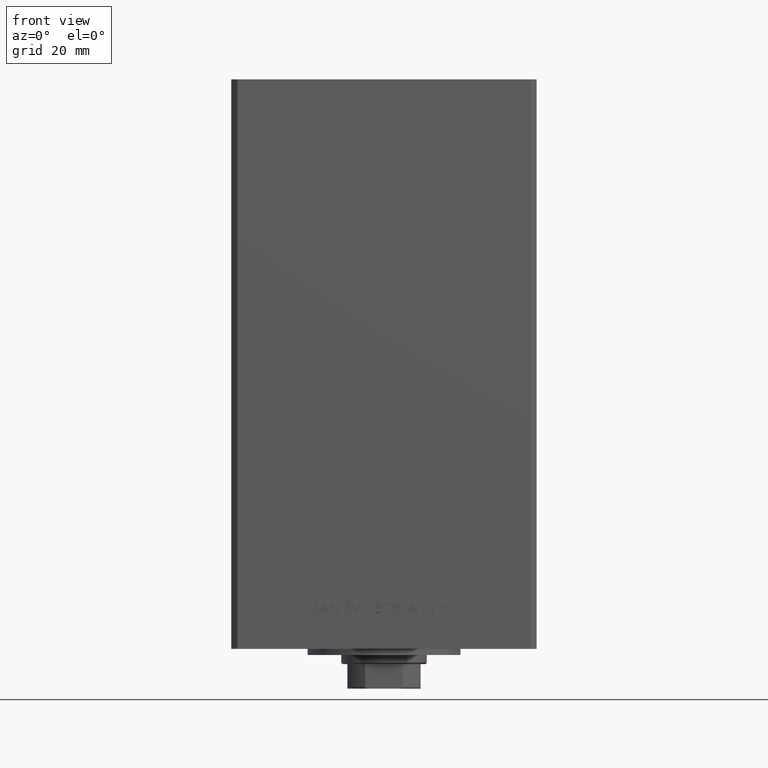
[diagram: clean part render]
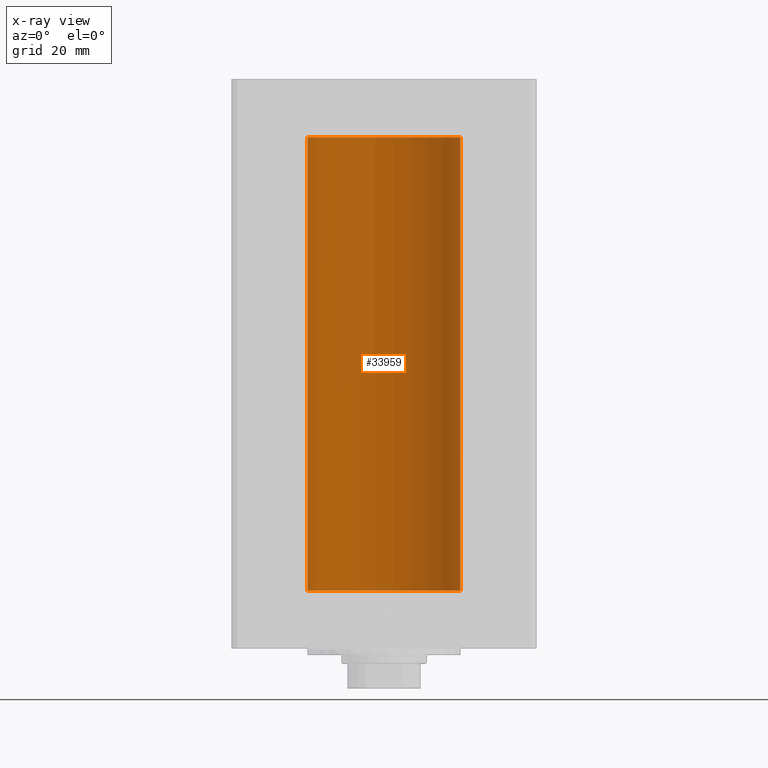
[diagram: x-ray — body ghosted, one internal face saturated and labeled with its STEP entity id]
A machine part, front view, then the same camera in x-ray: the body is ghosted and one INTERNAL B-rep face — a face not visible from any outside direction — is saturated and labeled: STEP entity #33959.
In plain terms, the highlighted cylindrical surface (partial cylindrical patch) has radius 25 mm, axis along (-0, -0, -1).
Its self-contained STEP definition (entity closure, byte-faithful):
#1067 = DIRECTION ( 'NONE',  ( -0.000000000000000000, 0.000000000000000000, 1.000000000000000000 ) ) ;
#1548 = FACE_OUTER_BOUND ( 'NONE', #13859, .T. ) ;
#1785 = DIRECTION ( 'NONE',  ( -1.000000000000000000, 0.000000000000000000, 0.000000000000000000 ) ) ;
#2553 = CARTESIAN_POINT ( 'NONE',  ( 25.00000000000000000, 3.061616997868383043E-15, 148.5000000000000000 ) ) ;
#2804 = CARTESIAN_POINT ( 'NONE',  ( -25.00000000000000000, 0.000000000000000000, 0.000000000000000000 ) ) ;
#4093 = CIRCLE ( 'NONE', #26566, 25.00000000000000000 ) ;
#6280 = ORIENTED_EDGE ( 'NONE', *, *, #20556, .T. ) ;
#8542 = ORIENTED_EDGE ( 'NONE', *, *, #8989, .T. ) ;
#8543 = CIRCLE ( 'NONE', #37398, 25.00000000000000000 ) ;
#8989 = EDGE_CURVE ( 'NONE', #37281, #38346, #16704, .T. ) ;
#9124 = VECTOR ( 'NONE', #21220, 1000.000000000000000 ) ;
#13859 = EDGE_LOOP ( 'NONE', ( #39076, #6280, #8542, #46637 ) ) ;
#16610 = DIRECTION ( 'NONE',  ( 1.000000000000000000, 0.000000000000000000, 0.000000000000000000 ) ) ;
#16704 = LINE ( 'NONE', #24988, #9124 ) ;
#16835 = CYLINDRICAL_SURFACE ( 'NONE', #22649, 25.00000000000000000 ) ;
#19302 = LINE ( 'NONE', #45878, #49574 ) ;
#20263 = CARTESIAN_POINT ( 'NONE',  ( 25.00000000000000000, 3.061616997868383043E-15, 0.000000000000000000 ) ) ;
#20556 = EDGE_CURVE ( 'NONE', #38201, #37281, #8543, .T. ) ;
#21220 = DIRECTION ( 'NONE',  ( -0.000000000000000000, -0.000000000000000000, -1.000000000000000000 ) ) ;
#22649 = AXIS2_PLACEMENT_3D ( 'NONE', #28638, #47433, #1785 ) ;
#24713 = CARTESIAN_POINT ( 'NONE',  ( 0.000000000000000000, 0.000000000000000000, 148.5000000000000000 ) ) ;
#24988 = CARTESIAN_POINT ( 'NONE',  ( -25.00000000000000000, 0.000000000000000000, 148.5000000000000000 ) ) ;
#26101 = EDGE_CURVE ( 'NONE', #38201, #42592, #19302, .T. ) ;
#26566 = AXIS2_PLACEMENT_3D ( 'NONE', #39196, #1067, #16610 ) ;
#26846 = DIRECTION ( 'NONE',  ( -0.000000000000000000, -0.000000000000000000, -1.000000000000000000 ) ) ;
#28638 = CARTESIAN_POINT ( 'NONE',  ( 0.000000000000000000, 0.000000000000000000, 148.5000000000000000 ) ) ;
#31132 = EDGE_CURVE ( 'NONE', #42592, #38346, #4093, .T. ) ;
#33959 = ADVANCED_FACE ( 'NONE', ( #1548 ), #16835, .F. ) ;
#37281 = VERTEX_POINT ( 'NONE', #43650 ) ;
#37398 = AXIS2_PLACEMENT_3D ( 'NONE', #24713, #47759, #47017 ) ;
#38201 = VERTEX_POINT ( 'NONE', #2553 ) ;
#38346 = VERTEX_POINT ( 'NONE', #2804 ) ;
#39076 = ORIENTED_EDGE ( 'NONE', *, *, #26101, .F. ) ;
#39196 = CARTESIAN_POINT ( 'NONE',  ( 0.000000000000000000, 0.000000000000000000, 0.000000000000000000 ) ) ;
#42592 = VERTEX_POINT ( 'NONE', #20263 ) ;
#43650 = CARTESIAN_POINT ( 'NONE',  ( -25.00000000000000000, 0.000000000000000000, 148.5000000000000000 ) ) ;
#45878 = CARTESIAN_POINT ( 'NONE',  ( 25.00000000000000000, 3.061616997868383043E-15, 148.5000000000000000 ) ) ;
#46637 = ORIENTED_EDGE ( 'NONE', *, *, #31132, .F. ) ;
#47017 = DIRECTION ( 'NONE',  ( 1.000000000000000000, 0.000000000000000000, 0.000000000000000000 ) ) ;
#47433 = DIRECTION ( 'NONE',  ( -0.000000000000000000, -0.000000000000000000, -1.000000000000000000 ) ) ;
#47759 = DIRECTION ( 'NONE',  ( -0.000000000000000000, 0.000000000000000000, 1.000000000000000000 ) ) ;
#49574 = VECTOR ( 'NONE', #26846, 1000.000000000000000 ) ;